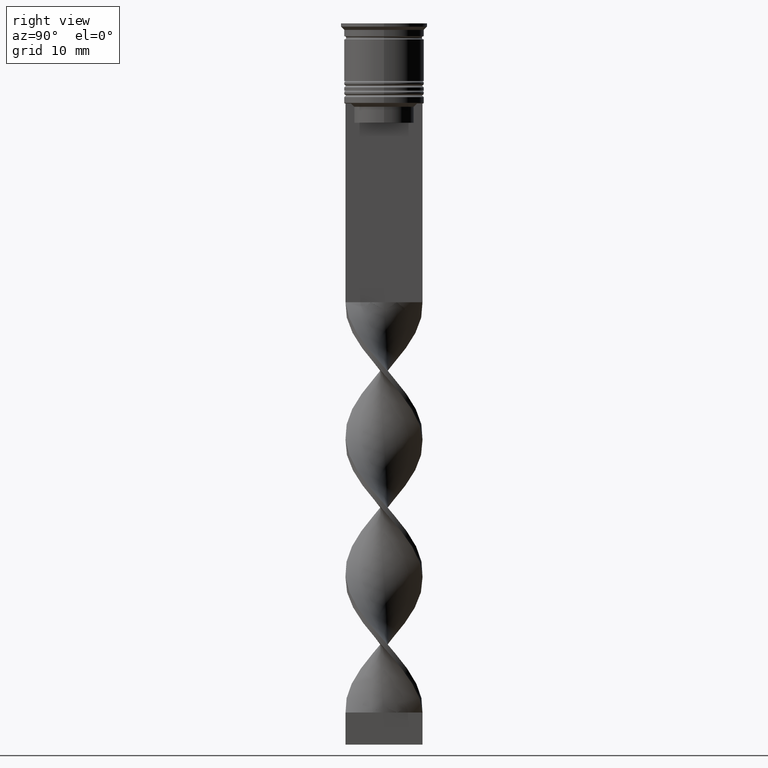
[diagram: clean part render]
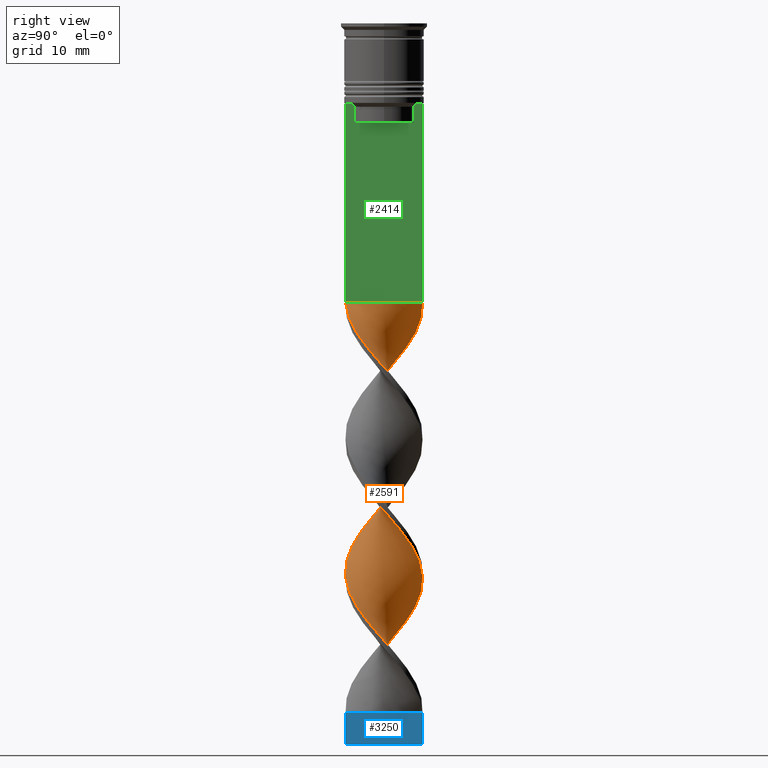
[diagram: same view with three faces highlighted in distinct colors, each labeled with its STEP entity id]
A machine part, right view with three faces highlighted in distinct colors.
Their STEP definitions:

[orange] entity #2591 — the highlighted face is a freeform B-spline surface patch.
#2 = CARTESIAN_POINT ( 'NONE',  ( 0.9504230770123223149, 5.945308736700090080, -105.8589743589743506 ) ) ;
#24 = CARTESIAN_POINT ( 'NONE',  ( 0.5000000000000002220, -5.999999999999999112, -43.50000000000000000 ) ) ;
#48 = CARTESIAN_POINT ( 'NONE',  ( 3.604480575359220840, 4.822625818147002086, -102.5769230769230660 ) ) ;
#60 = CARTESIAN_POINT ( 'NONE',  ( -3.604480575359219952, 4.822625818147005639, -91.08974358974359120 ) ) ;
#69 = CARTESIAN_POINT ( 'NONE',  ( 0.2285318993335655469, 6.060710991611129472, -106.6794871794871824 ) ) ;
#72 = ORIENTED_EDGE ( 'NONE', *, *, #1867, .F. ) ;
#79 = CARTESIAN_POINT ( 'NONE',  ( 1.228531899333567434, 5.939289008388870528, -85.34615384615383959 ) ) ;
#88 = CARTESIAN_POINT ( 'NONE',  ( -0.5000000000000004441, -2.000000000000000888, -107.5000000000000000 ) ) ;
#97 = CARTESIAN_POINT ( 'NONE',  ( 2.345611019436006028, -5.545097739941144077, -68.11538461538459899 ) ) ;
#105 = CARTESIAN_POINT ( 'NONE',  ( 1.672314254691078972, 5.829906481789051576, -105.0384615384615188 ) ) ;
#116 = CARTESIAN_POINT ( 'NONE',  ( 5.221935568727518628, 2.996896547440106140, -79.60256410256410220 ) ) ;
#137 = CARTESIAN_POINT ( 'NONE',  ( -2.345611019436006028, 5.545097739941144077, -89.44871794871794179 ) ) ;
#151 = CARTESIAN_POINT ( 'NONE',  ( 5.988975108237873712, -0.9574036273986641365, -52.52564102564103621 ) ) ;
#153 = CARTESIAN_POINT ( 'NONE',  ( 5.432795012591220996, -2.595137443597923532, -73.03846153846153300 ) ) ;
#168 = CARTESIAN_POINT ( 'NONE',  ( 5.747901747727227395, 1.935476698729089007, -55.80769230769230660 ) ) ;
#171 = CARTESIAN_POINT ( 'NONE',  ( -5.585824691029640299, -2.362838774426348376, -100.1153846153846132 ) ) ;
#189 = CARTESIAN_POINT ( 'NONE',  ( -2.614197889543180331, 5.472697136436197596, -67.29487179487178139 ) ) ;
#190 = CARTESIAN_POINT ( 'NONE',  ( -0.2285318993335630489, 6.060710991611131249, -86.98717948717948900 ) ) ;
#206 = CARTESIAN_POINT ( 'NONE',  ( -1.228531899333566546, -5.939289008388870528, -106.6794871794871682 ) ) ;
#208 = CARTESIAN_POINT ( 'NONE',  ( -5.117688277455214596, 3.254798188466754727, -93.55128205128204399 ) ) ;
#215 = CARTESIAN_POINT ( 'NONE',  ( 2.345611019436006472, 5.545097739941142301, -61.55128205128204399 ) ) ;
#224 = CARTESIAN_POINT ( 'NONE',  ( -4.653870821996361151, -3.819880413333761826, -79.60256410256410220 ) ) ;
#226 = CARTESIAN_POINT ( 'NONE',  ( -5.221935568727517740, -2.996896547440106584, -58.26923076923076650 ) ) ;
#235 = CARTESIAN_POINT ( 'NONE',  ( 5.747901747727227395, 1.935476698729089229, -55.80769230769230660 ) ) ;
#243 = CARTESIAN_POINT ( 'NONE',  ( -0.2285318993335662963, -6.060710991611128584, -85.34615384615383959 ) ) ;
#254 = CARTESIAN_POINT ( 'NONE',  ( 6.044068061194096231, 0.5036723384328413156, -54.16666666666666430 ) ) ;
#258 = CARTESIAN_POINT ( 'NONE',  ( 5.432795012591220107, 2.595137443597919980, -99.29487179487178139 ) ) ;
#304 = CARTESIAN_POINT ( 'NONE',  ( 6.016521584715984972, -0.2268656444829120489, -96.01282051282051100 ) ) ;
#323 = CARTESIAN_POINT ( 'NONE',  ( 5.988975108237873712, -0.9574036273986640255, -95.19230769230769340 ) ) ;
#329 = CARTESIAN_POINT ( 'NONE',  ( -4.190053366537507706, 4.384962638200773810, -91.91025641025643722 ) ) ;
#336 = CARTESIAN_POINT ( 'NONE',  ( -5.895984904460662257, -1.219574518580961220, -76.32051282051281760 ) ) ;
#351 = CARTESIAN_POINT ( 'NONE',  ( 3.847936200635251769, 4.688051999358553878, -82.06410256410255499 ) ) ;
#368 = CARTESIAN_POINT ( 'NONE',  ( -0.9504230770123205385, 5.945308736700091856, -45.14102564102563520 ) ) ;
#369 = CARTESIAN_POINT ( 'NONE',  ( -3.604480575359219952, 4.822625818147005639, -48.42307692307691269 ) ) ;
#375 = CARTESIAN_POINT ( 'NONE',  ( -5.787399899633755673, 1.660121200912507478, -73.03846153846153300 ) ) ;
#388 = CARTESIAN_POINT ( 'NONE',  ( -3.847936200635251325, -4.688051999358553878, -60.73076923076922640 ) ) ;
#405 = CARTESIAN_POINT ( 'NONE',  ( -1.672314254691077862, 5.829906481789053352, -88.62820512820513841 ) ) ;
#425 = CARTESIAN_POINT ( 'NONE',  ( 6.044068061194096231, 0.5036723384328413156, -54.16666666666665719 ) ) ;
#439 = CARTESIAN_POINT ( 'NONE',  ( -3.604480575359221728, -4.822625818147002086, -81.24358974358973740 ) ) ;
#441 = CARTESIAN_POINT ( 'NONE',  ( -5.988975108237876377, -0.9574036273986638035, -98.47435897435896379 ) ) ;
#455 = CARTESIAN_POINT ( 'NONE',  ( 1.228531899333563437, -5.939289008388868751, -44.32051282051282470 ) ) ;
#457 = CARTESIAN_POINT ( 'NONE',  ( -5.221935568727517740, -2.996896547440106584, -100.9358974358974308 ) ) ;
#476 = CARTESIAN_POINT ( 'NONE',  ( -1.228531899333561883, 5.939289008388868751, -65.65384615384614619 ) ) ;
#478 = CARTESIAN_POINT ( 'NONE',  ( 6.044068061194098007, -0.5036723384328427588, -75.50000000000000000 ) ) ;
#493 = CARTESIAN_POINT ( 'NONE',  ( -6.044068061194096231, -0.5036723384328405384, -75.49999999999998579 ) ) ;
#496 = CARTESIAN_POINT ( 'NONE',  ( -6.016521584715986748, -0.2268656444829102170, -97.65384615384614619 ) ) ;
#509 = CARTESIAN_POINT ( 'NONE',  ( 6.044068061194096231, 0.5036723384328413156, -96.83333333333332860 ) ) ;
#512 = CARTESIAN_POINT ( 'NONE',  ( 1.672314254691075641, -5.829906481789053352, -67.29487179487178139 ) ) ;
#525 = CARTESIAN_POINT ( 'NONE',  ( -1.921364894438370552, 5.705993072412533174, -66.47435897435896379 ) ) ;
#533 = CARTESIAN_POINT ( 'NONE',  ( 5.117688277455212820, 3.254798188466753395, -100.1153846153846274 ) ) ;
#545 = CARTESIAN_POINT ( 'NONE',  ( 3.604480575359220840, 4.822625818147002086, -59.91025641025640880 ) ) ;
#558 = CARTESIAN_POINT ( 'NONE',  ( 1.921364894438372550, -5.705993072412533174, -45.14102564102563520 ) ) ;
#576 = CARTESIAN_POINT ( 'NONE',  ( 4.653870821996360263, 3.819880413333762270, -58.26923076923076650 ) ) ;
#598 = CARTESIAN_POINT ( 'NONE',  ( 3.847936200635249993, -4.688051999358552990, -90.26923076923077360 ) ) ;
#607 = CARTESIAN_POINT ( 'NONE',  ( 0.2285318993335617443, -6.060710991611130360, -65.65384615384614619 ) ) ;
#612 = CARTESIAN_POINT ( 'NONE',  ( -5.585824691029636746, 2.362838774426351485, -72.21794871794871540 ) ) ;
#622 = CARTESIAN_POINT ( 'NONE',  ( -5.117688277455214596, 3.254798188466754727, -93.55128205128204399 ) ) ;
#624 = CARTESIAN_POINT ( 'NONE',  ( -0.9504230770123205385, 5.945308736700091856, -45.14102564102563520 ) ) ;
#629 = CARTESIAN_POINT ( 'NONE',  ( -5.117688277455215484, -3.254798188466750286, -78.78205128205127039 ) ) ;
#643 = CARTESIAN_POINT ( 'NONE',  ( 6.016521584715985860, 0.2268656444829068586, -76.32051282051281760 ) ) ;
#653 = CARTESIAN_POINT ( 'NONE',  ( -6.044068061194096231, -0.5036723384328406494, -75.50000000000000000 ) ) ;
#663 = CARTESIAN_POINT ( 'NONE',  ( -5.747901747727229171, 1.935476698729089895, -52.52564102564103621 ) ) ;
#665 = CARTESIAN_POINT ( 'NONE',  ( -0.2285318993335630489, 6.060710991611131249, -44.32051282051282470 ) ) ;
#682 = CARTESIAN_POINT ( 'NONE',  ( -0.2285318993335630489, 6.060710991611130360, -86.98717948717948900 ) ) ;
#701 = CARTESIAN_POINT ( 'NONE',  ( 5.585824691029639411, -2.362838774426348376, -50.88461538461538680 ) ) ;
#717 = CARTESIAN_POINT ( 'NONE',  ( -5.221935568727515076, 2.996896547440107028, -71.39743589743588359 ) ) ;
#719 = CARTESIAN_POINT ( 'NONE',  ( -6.044068061194098007, 0.5036723384328419817, -96.83333333333332860 ) ) ;
#733 = CARTESIAN_POINT ( 'NONE',  ( 4.352991323530321033, -4.159503159906209113, -48.42307692307691269 ) ) ;
#735 = CARTESIAN_POINT ( 'NONE',  ( 5.988975108237876377, 0.9574036273986615830, -77.14102564102563520 ) ) ;
#750 = CARTESIAN_POINT ( 'NONE',  ( -2.614197889543184328, -5.472697136436197596, -105.0384615384615330 ) ) ;
#752 = CARTESIAN_POINT ( 'NONE',  ( 3.018907784180933973, -5.260288998093237467, -68.93589743589743080 ) ) ;
#771 = CARTESIAN_POINT ( 'NONE',  ( -5.988975108237873712, 0.9574036273986636925, -73.85897435897436480 ) ) ;
#773 = CARTESIAN_POINT ( 'NONE',  ( 5.585824691029641187, 2.362838774426345267, -78.78205128205127039 ) ) ;
#788 = CARTESIAN_POINT ( 'NONE',  ( -2.345611019436006028, 5.545097739941144077, -89.44871794871794179 ) ) ;
#795 = CARTESIAN_POINT ( 'NONE',  ( 5.117688277455212820, 3.254798188466753395, -57.44871794871794890 ) ) ;
#803 = CARTESIAN_POINT ( 'NONE',  ( 2.345611019436006472, 5.545097739941142301, -104.2179487179487012 ) ) ;
#825 = CARTESIAN_POINT ( 'NONE',  ( 3.018907784180934861, 5.260288998093234802, -103.3974358974358694 ) ) ;
#849 = CARTESIAN_POINT ( 'NONE',  ( 5.988975108237873712, -0.9574036273986640255, -52.52564102564102910 ) ) ;
#868 = CARTESIAN_POINT ( 'NONE',  ( 5.585824691029638522, -2.362838774426348376, -93.55128205128204399 ) ) ;
#877 = VERTEX_POINT ( 'NONE', #1253 ) ;
#880 = VECTOR ( 'NONE', #2141, 1000.000000000000000 ) ;
#896 = CARTESIAN_POINT ( 'NONE',  ( 3.604480575359219952, -4.822625818147006527, -69.75641025641024839 ) ) ;
#902 = CARTESIAN_POINT ( 'NONE',  ( 5.895984904460661369, 1.219574518580964329, -97.65384615384614619 ) ) ;
#913 = CARTESIAN_POINT ( 'NONE',  ( 3.018907784180934417, -5.260288998093237467, -68.93589743589743080 ) ) ;
#919 = CARTESIAN_POINT ( 'NONE',  ( 3.231067045089215828, -5.080374567897374405, -89.44871794871794179 ) ) ;
#932 = CARTESIAN_POINT ( 'NONE',  ( 0.9504230770123185401, -5.945308736700091856, -66.47435897435896379 ) ) ;
#941 = CARTESIAN_POINT ( 'NONE',  ( -3.604480575359221728, -4.822625818147002086, -81.24358974358973740 ) ) ;
#951 = CARTESIAN_POINT ( 'NONE',  ( -3.018907784180934861, 5.260288998093236579, -47.60256410256408799 ) ) ;
#966 = CARTESIAN_POINT ( 'NONE',  ( 5.895984904460661369, 1.219574518580964329, -54.98717948717948190 ) ) ;
#982 = CARTESIAN_POINT ( 'NONE',  ( -6.044068061194098007, 0.5036723384328419817, -96.83333333333332860 ) ) ;
#983 = CARTESIAN_POINT ( 'NONE',  ( 2.614197889543185216, 5.472697136436197596, -83.70512820512820440 ) ) ;
#1000 = CARTESIAN_POINT ( 'NONE',  ( -6.016521584715986748, -0.2268656444829102170, -97.65384615384614619 ) ) ;
#1001 = CARTESIAN_POINT ( 'NONE',  ( 5.787399899633758338, 1.660121200912505923, -77.96153846153845279 ) ) ;
#1015 = CARTESIAN_POINT ( 'NONE',  ( -4.858046446425391629, 3.630954320453866568, -70.57692307692306599 ) ) ;
#1016 = CARTESIAN_POINT ( 'NONE',  ( -5.895984904460663145, 1.219574518580966771, -53.34615384615383959 ) ) ;
#1032 = CARTESIAN_POINT ( 'NONE',  ( -0.4999999999999994449, 5.999999999999999112, -64.83333333333332860 ) ) ;
#1034 = CARTESIAN_POINT ( 'NONE',  ( 1.921364894438378323, 5.705993072412532285, -84.52564102564103621 ) ) ;
#1044 = CARTESIAN_POINT ( 'NONE',  ( 0.9504230770123223149, 5.945308736700090080, -63.19230769230768630 ) ) ;
#1051 = CARTESIAN_POINT ( 'NONE',  ( -0.9504230770123205385, 5.945308736700091856, -87.80769230769230660 ) ) ;
#1078 = CARTESIAN_POINT ( 'NONE',  ( 1.672314254691079194, 5.829906481789051576, -105.0384615384615330 ) ) ;
#1134 = ORIENTED_EDGE ( 'NONE', *, *, #3367, .F. ) ;
#1160 = CARTESIAN_POINT ( 'NONE',  ( -4.190053366537507706, 4.384962638200773810, -49.24358974358973740 ) ) ;
#1166 = CARTESIAN_POINT ( 'NONE',  ( 4.190053366537507706, 4.384962638200772034, -101.7564102564102484 ) ) ;
#1175 = CARTESIAN_POINT ( 'NONE',  ( -5.432795012591220996, 2.595137443597922644, -94.37179487179486159 ) ) ;
#1191 = CARTESIAN_POINT ( 'NONE',  ( -3.604480575359219952, 4.822625818147005639, -48.42307692307691269 ) ) ;
#1198 = CARTESIAN_POINT ( 'NONE',  ( -6.016521584715984972, 0.2268656444829141028, -74.67948717948718240 ) ) ;
#1213 = CARTESIAN_POINT ( 'NONE',  ( 2.614197889543185216, 5.472697136436197596, -83.70512820512820440 ) ) ;
#1219 = ORIENTED_EDGE ( 'NONE', *, *, #2899, .F. ) ;
#1229 = CARTESIAN_POINT ( 'NONE',  ( 0.5000000000000002220, 6.000000000000000888, -86.16666666666667140 ) ) ;
#1242 = CARTESIAN_POINT ( 'NONE',  ( 5.787399899633755673, -1.660121200912507033, -51.70512820512820440 ) ) ;
#1244 = CARTESIAN_POINT ( 'NONE',  ( 5.895984904460663145, -1.219574518580968769, -74.67948717948718240 ) ) ;
#1253 = CARTESIAN_POINT ( 'NONE',  ( -0.4999999999999994449, 5.999999999999999112, -107.5000000000000000 ) ) ;
#1261 = CARTESIAN_POINT ( 'NONE',  ( 3.604480575359220840, 4.822625818147002086, -59.91025641025640880 ) ) ;
#1262 = CARTESIAN_POINT ( 'NONE',  ( -0.5000000000000009992, -6.000000000000000888, -64.83333333333332860 ) ) ;
#1279 = CARTESIAN_POINT ( 'NONE',  ( 3.231067045089215828, -5.080374567897374405, -46.78205128205127750 ) ) ;
#1282 = CARTESIAN_POINT ( 'NONE',  ( 4.653870821996361151, -3.819880413333764047, -71.39743589743588359 ) ) ;
#1296 = CARTESIAN_POINT ( 'NONE',  ( 5.432795012591220107, 2.595137443597919980, -56.62820512820513130 ) ) ;
#1298 = CARTESIAN_POINT ( 'NONE',  ( -5.747901747727229171, 1.935476698729089895, -52.52564102564102910 ) ) ;
#1314 = CARTESIAN_POINT ( 'NONE',  ( -0.5000000000000009992, -6.000000000000000888, -107.5000000000000000 ) ) ;
#1317 = CARTESIAN_POINT ( 'NONE',  ( 5.117688277455212820, -3.254798188466756947, -72.21794871794871540 ) ) ;
#1338 = CARTESIAN_POINT ( 'NONE',  ( 4.858046446425392517, -3.630954320453864348, -91.91025641025643722 ) ) ;
#1347 = CARTESIAN_POINT ( 'NONE',  ( -1.228531899333561883, 5.939289008388868751, -65.65384615384614619 ) ) ;
#1353 = CARTESIAN_POINT ( 'NONE',  ( 1.228531899333563437, -5.939289008388868751, -86.98717948717948900 ) ) ;
#1379 = CARTESIAN_POINT ( 'NONE',  ( 4.858046446425392517, -3.630954320453864348, -49.24358974358974450 ) ) ;
#1401 = CARTESIAN_POINT ( 'NONE',  ( 5.432795012591220107, 2.595137443597919980, -99.29487179487178139 ) ) ;
#1406 = CARTESIAN_POINT ( 'NONE',  ( 0.5000000000000002220, -5.999999999999999112, -86.16666666666667140 ) ) ;
#1417 = CARTESIAN_POINT ( 'NONE',  ( 6.044068061194096231, 0.5036723384328413156, -96.83333333333332860 ) ) ;
#1425 = CARTESIAN_POINT ( 'NONE',  ( 5.747901747727229171, -1.935476698729089451, -73.85897435897436480 ) ) ;
#1433 = CARTESIAN_POINT ( 'NONE',  ( -1.672314254691079416, -5.829906481789051576, -83.70512820512820440 ) ) ;
#1446 = CARTESIAN_POINT ( 'NONE',  ( -3.231067045089217604, -5.080374567897375293, -61.55128205128204399 ) ) ;
#1461 = CARTESIAN_POINT ( 'NONE',  ( -5.895984904460663145, 1.219574518580966771, -53.34615384615383959 ) ) ;
#1468 = CARTESIAN_POINT ( 'NONE',  ( 3.018907784180934417, 5.260288998093234802, -103.3974358974358836 ) ) ;
#1480 = CARTESIAN_POINT ( 'NONE',  ( 0.5000000000000002220, 6.000000000000000888, -43.50000000000000000 ) ) ;
#1499 = CARTESIAN_POINT ( 'NONE',  ( -5.585824691029640299, -2.362838774426348376, -57.44871794871794890 ) ) ;
#1503 =( BOUNDED_CURVE ( )  B_SPLINE_CURVE ( 2, ( #2868, #665, #624, #2263, #3328, #2002, #369, #1806, #2386, #3398, #2916, #1298, #1016, #2600, #2118, #2351, #3472, #2138, #226, #2880, #2658, #2085, #2676, #3420, #1840, #2950, #1262, #3208, #3191, #512, #2099, #752, #1552, #3156, #1282, #1317, #153, #3448, #1244, #478, #2637, #735, #1001, #773, #2332, #2368, #1823, #3432, #2407, #983, #1034, #2072, #1571, #190, #1051, #3142, #788, #1588, #3170, #1861, #1532, #208, #2933, #2894, #1876, #719, #496, #441, #2614, #171, #457, #2189, #1626, #3260, #1660, #2712, #1966, #1607, #1641 ),
 .UNSPECIFIED., .F., .T. ) 
 B_SPLINE_CURVE_WITH_KNOTS ( ( 3, 2, 2, 2, 2, 2, 2, 2, 2, 2, 2, 2, 2, 2, 2, 2, 2, 2, 2, 2, 2, 2, 2, 2, 2, 2, 2, 2, 2, 2, 2, 2, 2, 2, 2, 2, 2, 2, 2, 3 ),
 ( 0.000000000000000000, 0.01923076923076923184, 0.03846153846153846367, 0.05769230769230768857, 0.07692307692307692735, 0.09615384615384615918, 0.1153846153846153771, 0.1346153846153846090, 0.1538461538461538547, 0.1730769230769230449, 0.1923076923076923184, 0.2115384615384615363, 0.2307692307692307543, 0.2500000000000000000, 0.2692307692307692180, 0.2884615384615384359, 0.3076923076923077094, 0.3269230769230769273, 0.3461538461538460898, 0.3653846153846153633, 0.3846153846153846367, 0.4038461538461539102, 0.4230769230769230727, 0.4423076923076922906, 0.4615384615384615086, 0.4807692307692307820, 0.5000000000000000000, 0.5192307692307692735, 0.5384615384615384359, 0.5576923076923077094, 0.5769230769230768718, 0.5961538461538461453, 0.6153846153846154188, 0.6346153846153845812, 0.6538461538461538547, 0.6730769230769230171, 0.6923076923076921796, 0.7115384615384615641, 0.7307692307692307265, 0.7500000000000000000 ),
 .UNSPECIFIED. ) 
 CURVE ( )  GEOMETRIC_REPRESENTATION_ITEM ( )  RATIONAL_B_SPLINE_CURVE ( ( 1.000000000000000000, 0.9927088740980539727, 1.000000000000000000, 0.9927088740980539727, 1.000000000000000000, 0.9927088740980539727, 1.000000000000000000, 0.9927088740980539727, 1.000000000000000000, 0.9927088740980539727, 1.000000000000000000, 0.9927088740980539727, 1.000000000000000000, 0.9927088740980539727, 1.000000000000000000, 0.9927088740980539727, 1.000000000000000000, 0.9927088740980539727, 1.000000000000000000, 0.9927088740980539727, 1.000000000000000000, 0.9927088740980539727, 1.000000000000000000, 0.9927088740980539727, 1.000000000000000000, 0.9927088740980539727, 1.000000000000000000, 0.9927088740980539727, 1.000000000000000000, 0.9927088740980539727, 1.000000000000000000, 0.9927088740980539727, 1.000000000000000000, 0.9927088740980539727, 1.000000000000000000, 0.9927088740980539727, 1.000000000000000000, 0.9927088740980539727, 1.000000000000000000, 0.9927088740980539727, 1.000000000000000000, 0.9927088740980539727, 1.000000000000000000, 0.9927088740980539727, 1.000000000000000000, 0.9927088740980539727, 1.000000000000000000, 0.9927088740980539727, 1.000000000000000000, 0.9927088740980539727, 1.000000000000000000, 0.9927088740980539727, 1.000000000000000000, 0.9927088740980539727, 1.000000000000000000, 0.9927088740980539727, 1.000000000000000000, 0.9927088740980539727, 1.000000000000000000, 0.9927088740980539727, 1.000000000000000000, 0.9927088740980539727, 1.000000000000000000, 0.9927088740980539727, 1.000000000000000000, 0.9927088740980539727, 1.000000000000000000, 0.9927088740980539727, 1.000000000000000000, 0.9927088740980539727, 1.000000000000000000, 0.9927088740980539727, 1.000000000000000000, 0.9927088740980539727, 1.000000000000000000, 0.9927088740980539727, 1.000000000000000000, 0.9927088740980539727, 1.000000000000000000 ) ) 
 REPRESENTATION_ITEM ( '' )  );
#1510 = CARTESIAN_POINT ( 'NONE',  ( -0.4999999999999994449, 5.999999999999999112, -107.5000000000000000 ) ) ;
#1516 = CARTESIAN_POINT ( 'NONE',  ( -4.190053366537509483, -4.384962638200768481, -80.42307692307691980 ) ) ;
#1531 = CARTESIAN_POINT ( 'NONE',  ( 6.016521584715984972, -0.2268656444829120489, -53.34615384615383959 ) ) ;
#1532 = CARTESIAN_POINT ( 'NONE',  ( -4.653870821996361151, 3.819880413333764047, -92.73076923076922640 ) ) ;
#1535 = EDGE_CURVE ( 'NONE', #2505, #877, #3041, .T. ) ;
#1550 = CARTESIAN_POINT ( 'NONE',  ( -3.847936200635251325, -4.688051999358553878, -103.3974358974358694 ) ) ;
#1552 = CARTESIAN_POINT ( 'NONE',  ( 3.604480575359219952, -4.822625818147006527, -69.75641025641024839 ) ) ;
#1557 = CARTESIAN_POINT ( 'NONE',  ( 0.5000000000000002220, -6.000000000000000000, -43.50000000000000000 ) ) ;
#1569 = CARTESIAN_POINT ( 'NONE',  ( 0.2285318993335655469, 6.060710991611128584, -64.01282051282051100 ) ) ;
#1571 = CARTESIAN_POINT ( 'NONE',  ( 0.5000000000000002220, 6.000000000000000888, -86.16666666666667140 ) ) ;
#1586 = CARTESIAN_POINT ( 'NONE',  ( -5.747901747727229171, -1.935476698729086786, -77.14102564102563520 ) ) ;
#1588 = CARTESIAN_POINT ( 'NONE',  ( -3.018907784180934417, 5.260288998093236579, -90.26923076923077360 ) ) ;
#1591 = VERTEX_POINT ( 'NONE', #2026 ) ;
#1598 = CARTESIAN_POINT ( 'NONE',  ( 3.231067045089215828, -5.080374567897374405, -46.78205128205127750 ) ) ;
#1607 = CARTESIAN_POINT ( 'NONE',  ( -1.228531899333566324, -5.939289008388870528, -106.6794871794871824 ) ) ;
#1617 = ORIENTED_EDGE ( 'NONE', *, *, #1535, .T. ) ;
#1618 = CARTESIAN_POINT ( 'NONE',  ( 0.5000000000000002220, -5.999999999999999112, -43.50000000000000000 ) ) ;
#1624 = CARTESIAN_POINT ( 'NONE',  ( -0.4999999999999994449, 5.999999999999999112, -107.5000000000000000 ) ) ;
#1626 = CARTESIAN_POINT ( 'NONE',  ( -4.352991323530323697, -4.159503159906208225, -102.5769230769230660 ) ) ;
#1634 = CARTESIAN_POINT ( 'NONE',  ( 3.847936200635249993, -4.688051999358552990, -47.60256410256409509 ) ) ;
#1639 = CARTESIAN_POINT ( 'NONE',  ( 3.847936200635249993, -4.688051999358552990, -90.26923076923075939 ) ) ;
#1641 = CARTESIAN_POINT ( 'NONE',  ( -0.5000000000000009992, -6.000000000000000888, -107.5000000000000000 ) ) ;
#1651 = CARTESIAN_POINT ( 'NONE',  ( 2.614197889543182107, -5.472697136436196708, -45.96153846153845990 ) ) ;
#1658 = CARTESIAN_POINT ( 'NONE',  ( 0.2285318993335655469, 6.060710991611128584, -106.6794871794871682 ) ) ;
#1660 = CARTESIAN_POINT ( 'NONE',  ( -3.231067045089217604, -5.080374567897375293, -104.2179487179487012 ) ) ;
#1692 = CARTESIAN_POINT ( 'NONE',  ( 1.921364894438372550, -5.705993072412533174, -87.80769230769230660 ) ) ;
#1700 = CARTESIAN_POINT ( 'NONE',  ( 4.653870821996361151, -3.819880413333764047, -71.39743589743588359 ) ) ;
#1706 = CARTESIAN_POINT ( 'NONE',  ( -0.2285318993335662963, -6.060710991611129472, -85.34615384615385381 ) ) ;
#1713 = CARTESIAN_POINT ( 'NONE',  ( -5.988975108237874601, -0.9574036273986639145, -55.80769230769230660 ) ) ;
#1722 = CARTESIAN_POINT ( 'NONE',  ( 4.653870821996360263, 3.819880413333762270, -100.9358974358974308 ) ) ;
#1736 = CARTESIAN_POINT ( 'NONE',  ( 5.117688277455212820, -3.254798188466757392, -72.21794871794871540 ) ) ;
#1744 = CARTESIAN_POINT ( 'NONE',  ( 5.117688277455212820, 3.254798188466753395, -100.1153846153846132 ) ) ;
#1754 = CARTESIAN_POINT ( 'NONE',  ( -4.653870821996361151, 3.819880413333764047, -50.06410256410256210 ) ) ;
#1771 = CARTESIAN_POINT ( 'NONE',  ( 1.672314254691075641, -5.829906481789053352, -67.29487179487178139 ) ) ;
#1790 = CARTESIAN_POINT ( 'NONE',  ( -5.787399899633755673, 1.660121200912507478, -73.03846153846153300 ) ) ;
#1805 = CARTESIAN_POINT ( 'NONE',  ( 4.858046446425392517, -3.630954320453864348, -49.24358974358973740 ) ) ;
#1806 = CARTESIAN_POINT ( 'NONE',  ( -4.190053366537507706, 4.384962638200774698, -49.24358974358974450 ) ) ;
#1821 = CARTESIAN_POINT ( 'NONE',  ( -1.921364894438370552, 5.705993072412533174, -66.47435897435896379 ) ) ;
#1823 = CARTESIAN_POINT ( 'NONE',  ( 4.352991323530323697, 4.159503159906207337, -81.24358974358973740 ) ) ;
#1838 = CARTESIAN_POINT ( 'NONE',  ( 4.653870821996360263, 3.819880413333762270, -58.26923076923076650 ) ) ;
#1840 = CARTESIAN_POINT ( 'NONE',  ( -1.921364894438374993, -5.705993072412534062, -63.19230769230768630 ) ) ;
#1859 = CARTESIAN_POINT ( 'NONE',  ( 1.921364894438372550, -5.705993072412533174, -45.14102564102563520 ) ) ;
#1861 = CARTESIAN_POINT ( 'NONE',  ( -4.190053366537507706, 4.384962638200774698, -91.91025641025643722 ) ) ;
#1867 = EDGE_CURVE ( 'NONE', #1591, #877, #3411, .T. ) ;
#1876 = CARTESIAN_POINT ( 'NONE',  ( -5.895984904460663145, 1.219574518580966771, -96.01282051282051100 ) ) ;
#1883 = CARTESIAN_POINT ( 'NONE',  ( 4.190053366537507706, 4.384962638200772034, -59.08974358974358410 ) ) ;
#1911 = CARTESIAN_POINT ( 'NONE',  ( -0.9504230770123257566, -5.945308736700090080, -84.52564102564103621 ) ) ;
#1926 = CARTESIAN_POINT ( 'NONE',  ( -2.345611019436009581, -5.545097739941142301, -82.88461538461537259 ) ) ;
#1936 = CARTESIAN_POINT ( 'NONE',  ( 5.895984904460661369, 1.219574518580964329, -54.98717948717948190 ) ) ;
#1966 = CARTESIAN_POINT ( 'NONE',  ( -1.921364894438374993, -5.705993072412534062, -105.8589743589743506 ) ) ;
#1969 = CARTESIAN_POINT ( 'NONE',  ( -6.044068061194098007, 0.5036723384328419817, -54.16666666666665719 ) ) ;
#1974 = CARTESIAN_POINT ( 'NONE',  ( -0.4999999999999994449, 5.999999999999999112, -107.5000000000000000 ) ) ;
#1981 = CARTESIAN_POINT ( 'NONE',  ( 4.190053366537505930, -4.384962638200775586, -70.57692307692306599 ) ) ;
#1987 = CARTESIAN_POINT ( 'NONE',  ( -5.221935568727515076, 2.996896547440107028, -71.39743589743588359 ) ) ;
#1999 = CARTESIAN_POINT ( 'NONE',  ( 5.432795012591220996, -2.595137443597923532, -73.03846153846153300 ) ) ;
#2002 = CARTESIAN_POINT ( 'NONE',  ( -3.018907784180934417, 5.260288998093236579, -47.60256410256409509 ) ) ;
#2019 = CARTESIAN_POINT ( 'NONE',  ( -4.352991323530323697, -4.159503159906208225, -59.91025641025640880 ) ) ;
#2026 = CARTESIAN_POINT ( 'NONE',  ( -0.5000000000000009992, -6.000000000000000888, -107.5000000000000000 ) ) ;
#2036 = CARTESIAN_POINT ( 'NONE',  ( -0.9504230770123205385, 5.945308736700091856, -87.80769230769230660 ) ) ;
#2051 = CARTESIAN_POINT ( 'NONE',  ( -3.231067045089217604, -5.080374567897375293, -104.2179487179487012 ) ) ;
#2059 = CARTESIAN_POINT ( 'NONE',  ( -0.5000000000000000000, 1.999999999999999112, -107.5000000000000000 ) ) ;
#2070 = CARTESIAN_POINT ( 'NONE',  ( 5.117688277455212820, 3.254798188466753395, -57.44871794871794890 ) ) ;
#2072 = CARTESIAN_POINT ( 'NONE',  ( 1.228531899333567212, 5.939289008388870528, -85.34615384615385381 ) ) ;
#2084 = CARTESIAN_POINT ( 'NONE',  ( -5.787399899633758338, -1.660121200912505479, -99.29487179487178139 ) ) ;
#2085 = CARTESIAN_POINT ( 'NONE',  ( -3.847936200635251769, -4.688051999358553878, -60.73076923076922640 ) ) ;
#2097 = CARTESIAN_POINT ( 'NONE',  ( 5.221935568727515076, -2.996896547440107028, -50.06410256410256210 ) ) ;
#2099 = CARTESIAN_POINT ( 'NONE',  ( 2.345611019436006028, -5.545097739941144077, -68.11538461538459899 ) ) ;
#2116 = CARTESIAN_POINT ( 'NONE',  ( 0.9504230770123223149, 5.945308736700090080, -63.19230769230768630 ) ) ;
#2118 = CARTESIAN_POINT ( 'NONE',  ( -6.016521584715986748, -0.2268656444829102170, -54.98717948717948190 ) ) ;
#2129 = CARTESIAN_POINT ( 'NONE',  ( -0.4999999999999994449, 5.999999999999999112, -64.83333333333332860 ) ) ;
#2136 = CARTESIAN_POINT ( 'NONE',  ( 1.921364894438372550, -5.705993072412533174, -87.80769230769230660 ) ) ;
#2138 = CARTESIAN_POINT ( 'NONE',  ( -5.585824691029640299, -2.362838774426348376, -57.44871794871794890 ) ) ;
#2141 = DIRECTION ( 'NONE',  ( 0.000000000000000000, 1.000000000000000000, 0.000000000000000000 ) ) ;
#2145 = CARTESIAN_POINT ( 'NONE',  ( 4.352991323530321033, -4.159503159906209113, -48.42307692307691269 ) ) ;
#2161 = CARTESIAN_POINT ( 'NONE',  ( 0.2285318993335655469, 6.060710991611129472, -64.01282051282051100 ) ) ;
#2169 = CARTESIAN_POINT ( 'NONE',  ( 5.747901747727227395, 1.935476698729089007, -98.47435897435896379 ) ) ;
#2189 = CARTESIAN_POINT ( 'NONE',  ( -4.858046446425395182, -3.630954320453863460, -101.7564102564102484 ) ) ;
#2215 = EDGE_LOOP ( 'NONE', ( #1219, #1617, #72, #1134 ) ) ;
#2224 = FACE_OUTER_BOUND ( 'NONE', #2215, .T. ) ;
#2233 = CARTESIAN_POINT ( 'NONE',  ( -4.190053366537509483, -4.384962638200769369, -80.42307692307691980 ) ) ;
#2244 = CARTESIAN_POINT ( 'NONE',  ( -4.858046446425395182, -3.630954320453863460, -59.08974358974359120 ) ) ;
#2250 = CARTESIAN_POINT ( 'NONE',  ( 1.228531899333563215, -5.939289008388868751, -86.98717948717948900 ) ) ;
#2257 = VERTEX_POINT ( 'NONE', #3158 ) ;
#2260 = CARTESIAN_POINT ( 'NONE',  ( 5.988975108237874601, 0.9574036273986615830, -77.14102564102563520 ) ) ;
#2263 = CARTESIAN_POINT ( 'NONE',  ( -1.672314254691077640, 5.829906481789053352, -45.96153846153845990 ) ) ;
#2278 = CARTESIAN_POINT ( 'NONE',  ( -5.432795012591220996, 2.595137443597922644, -51.70512820512820440 ) ) ;
#2301 = CARTESIAN_POINT ( 'NONE',  ( 1.921364894438378323, 5.705993072412532285, -84.52564102564103621 ) ) ;
#2308 = CARTESIAN_POINT ( 'NONE',  ( -0.5000000000000009992, -6.000000000000000888, -107.5000000000000000 ) ) ;
#2315 = CARTESIAN_POINT ( 'NONE',  ( -3.018907784180934861, 5.260288998093236579, -90.26923076923075939 ) ) ;
#2331 = CARTESIAN_POINT ( 'NONE',  ( -5.895984904460663145, 1.219574518580966771, -96.01282051282051100 ) ) ;
#2332 = CARTESIAN_POINT ( 'NONE',  ( 5.221935568727518628, 2.996896547440106140, -79.60256410256410220 ) ) ;
#2349 = CARTESIAN_POINT ( 'NONE',  ( 3.018907784180934861, 5.260288998093234802, -60.73076923076922640 ) ) ;
#2351 = CARTESIAN_POINT ( 'NONE',  ( -5.988975108237876377, -0.9574036273986638035, -55.80769230769230660 ) ) ;
#2366 = CARTESIAN_POINT ( 'NONE',  ( -4.352991323530323697, -4.159503159906208225, -102.5769230769230660 ) ) ;
#2368 = CARTESIAN_POINT ( 'NONE',  ( 4.858046446425397846, 3.630954320453860795, -80.42307692307691980 ) ) ;
#2384 = CARTESIAN_POINT ( 'NONE',  ( -3.847936200635249104, 4.688051999358553878, -68.93589743589743080 ) ) ;
#2386 = CARTESIAN_POINT ( 'NONE',  ( -4.653870821996361151, 3.819880413333764047, -50.06410256410256210 ) ) ;
#2405 = CARTESIAN_POINT ( 'NONE',  ( 2.614197889543182107, -5.472697136436196708, -45.96153846153845279 ) ) ;
#2407 = CARTESIAN_POINT ( 'NONE',  ( 3.231067045089220713, 5.080374567897373517, -82.88461538461537259 ) ) ;
#2417 = CARTESIAN_POINT ( 'NONE',  ( 3.018907784180934417, 5.260288998093234802, -60.73076923076922640 ) ) ;
#2423 = CARTESIAN_POINT ( 'NONE',  ( 5.221935568727515076, -2.996896547440107028, -92.73076923076922640 ) ) ;
#2431 =( BOUNDED_SURFACE ( )  B_SPLINE_SURFACE ( 1, 2, ( 
 ( #1480, #2812, #368, #3093, #3363, #951, #1191, #1160, #1754, #2777, #2278, #663, #1461, #1969, #2564, #1713, #2846, #1499, #3108, #2244, #2019, #388, #1446, #2550, #3313, #3380, #3327, #607, #932, #1771, #97, #913, #896, #1981, #1700, #1736, #1999, #1425, #2514, #2584, #643, #2260, #2534, #2793, #116, #3037, #2828, #351, #3074, #1213, #2301, #79, #1229, #682, #2036, #405, #137, #2315, #60, #329, #3055, #622, #1175, #3396, #2331, #982, #1000, #3417, #2084, #3124, #2915, #3155, #2366, #1550, #2051, #750, #2612, #206, #1314 ),
 ( #2892, #455, #1859, #2405, #1279, #2635, #733, #1805, #2097, #701, #1242, #151, #1531, #425, #966, #168, #1296, #2070, #1838, #3168, #1261, #2349, #3430, #3141, #2116, #1569, #1032, #476, #1821, #189, #2655, #2384, #3447, #1015, #717, #3189, #1790, #771, #2931, #493, #2866, #1586, #2879, #2674, #224, #1516, #439, #2598, #1926, #2968, #1911, #243, #1406, #1353, #2136, #2453, #3275, #1639, #2440, #1338, #2423, #3206, #3240, #3500, #2948, #509, #3015, #2169, #258, #533, #3221, #2998, #3470, #825, #803, #1078, #2, #1658, #1624 ) ),
 .UNSPECIFIED., .F., .F., .F. ) 
 B_SPLINE_SURFACE_WITH_KNOTS ( ( 2, 2 ),
 ( 3, 2, 2, 2, 2, 2, 2, 2, 2, 2, 2, 2, 2, 2, 2, 2, 2, 2, 2, 2, 2, 2, 2, 2, 2, 2, 2, 2, 2, 2, 2, 2, 2, 2, 2, 2, 2, 2, 2, 3 ),
 ( 0.000000000000000000, 1.000000000000000000 ),
 ( 0.000000000000000000, 0.01923076923076923184, 0.03846153846153846367, 0.05769230769230769551, 0.07692307692307692735, 0.09615384615384615918, 0.1153846153846153910, 0.1346153846153846090, 0.1538461538461538547, 0.1730769230769230727, 0.1923076923076923184, 0.2115384615384615363, 0.2307692307692307820, 0.2500000000000000000, 0.2692307692307692180, 0.2884615384615384359, 0.3076923076923077094, 0.3269230769230769273, 0.3461538461538461453, 0.3653846153846153633, 0.3846153846153846367, 0.4038461538461538547, 0.4230769230769230727, 0.4423076923076922906, 0.4615384615384615641, 0.4807692307692307820, 0.5000000000000000000, 0.5192307692307692735, 0.5384615384615384359, 0.5576923076923077094, 0.5769230769230768718, 0.5961538461538461453, 0.6153846153846154188, 0.6346153846153845812, 0.6538461538461538547, 0.6730769230769231282, 0.6923076923076922906, 0.7115384615384615641, 0.7307692307692307265, 0.7500000000000000000 ),
 .UNSPECIFIED. ) 
 GEOMETRIC_REPRESENTATION_ITEM ( )  RATIONAL_B_SPLINE_SURFACE ( (
 ( 1.000000000000000000, 0.9927088740980539727, 1.000000000000000000, 0.9927088740980539727, 1.000000000000000000, 0.9927088740980539727, 1.000000000000000000, 0.9927088740980539727, 1.000000000000000000, 0.9927088740980539727, 1.000000000000000000, 0.9927088740980539727, 1.000000000000000000, 0.9927088740980539727, 1.000000000000000000, 0.9927088740980539727, 1.000000000000000000, 0.9927088740980539727, 1.000000000000000000, 0.9927088740980539727, 1.000000000000000000, 0.9927088740980539727, 1.000000000000000000, 0.9927088740980539727, 1.000000000000000000, 0.9927088740980539727, 1.000000000000000000, 0.9927088740980539727, 1.000000000000000000, 0.9927088740980539727, 1.000000000000000000, 0.9927088740980539727, 1.000000000000000000, 0.9927088740980539727, 1.000000000000000000, 0.9927088740980539727, 1.000000000000000000, 0.9927088740980539727, 1.000000000000000000, 0.9927088740980539727, 1.000000000000000000, 0.9927088740980539727, 1.000000000000000000, 0.9927088740980539727, 1.000000000000000000, 0.9927088740980539727, 1.000000000000000000, 0.9927088740980539727, 1.000000000000000000, 0.9927088740980539727, 1.000000000000000000, 0.9927088740980539727, 1.000000000000000000, 0.9927088740980539727, 1.000000000000000000, 0.9927088740980539727, 1.000000000000000000, 0.9927088740980539727, 1.000000000000000000, 0.9927088740980539727, 1.000000000000000000, 0.9927088740980539727, 1.000000000000000000, 0.9927088740980539727, 1.000000000000000000, 0.9927088740980539727, 1.000000000000000000, 0.9927088740980539727, 1.000000000000000000, 0.9927088740980539727, 1.000000000000000000, 0.9927088740980539727, 1.000000000000000000, 0.9927088740980539727, 1.000000000000000000, 0.9927088740980539727, 1.000000000000000000, 0.9927088740980539727, 1.000000000000000000),
 ( 1.000000000000000000, 0.9927088740980539727, 1.000000000000000000, 0.9927088740980539727, 1.000000000000000000, 0.9927088740980539727, 1.000000000000000000, 0.9927088740980539727, 1.000000000000000000, 0.9927088740980539727, 1.000000000000000000, 0.9927088740980539727, 1.000000000000000000, 0.9927088740980539727, 1.000000000000000000, 0.9927088740980539727, 1.000000000000000000, 0.9927088740980539727, 1.000000000000000000, 0.9927088740980539727, 1.000000000000000000, 0.9927088740980539727, 1.000000000000000000, 0.9927088740980539727, 1.000000000000000000, 0.9927088740980539727, 1.000000000000000000, 0.9927088740980539727, 1.000000000000000000, 0.9927088740980539727, 1.000000000000000000, 0.9927088740980539727, 1.000000000000000000, 0.9927088740980539727, 1.000000000000000000, 0.9927088740980539727, 1.000000000000000000, 0.9927088740980539727, 1.000000000000000000, 0.9927088740980539727, 1.000000000000000000, 0.9927088740980539727, 1.000000000000000000, 0.9927088740980539727, 1.000000000000000000, 0.9927088740980539727, 1.000000000000000000, 0.9927088740980539727, 1.000000000000000000, 0.9927088740980539727, 1.000000000000000000, 0.9927088740980539727, 1.000000000000000000, 0.9927088740980539727, 1.000000000000000000, 0.9927088740980539727, 1.000000000000000000, 0.9927088740980539727, 1.000000000000000000, 0.9927088740980539727, 1.000000000000000000, 0.9927088740980539727, 1.000000000000000000, 0.9927088740980539727, 1.000000000000000000, 0.9927088740980539727, 1.000000000000000000, 0.9927088740980539727, 1.000000000000000000, 0.9927088740980539727, 1.000000000000000000, 0.9927088740980539727, 1.000000000000000000, 0.9927088740980539727, 1.000000000000000000, 0.9927088740980539727, 1.000000000000000000, 0.9927088740980539727, 1.000000000000000000) ) ) 
 REPRESENTATION_ITEM ( '' )  SURFACE ( )  );
#2433 = CARTESIAN_POINT ( 'NONE',  ( -2.614197889543180331, 5.472697136436197596, -67.29487179487178139 ) ) ;
#2440 = CARTESIAN_POINT ( 'NONE',  ( 4.352991323530321033, -4.159503159906209113, -91.08974358974359120 ) ) ;
#2453 = CARTESIAN_POINT ( 'NONE',  ( 2.614197889543182107, -5.472697136436196708, -88.62820512820513841 ) ) ;
#2467 = CARTESIAN_POINT ( 'NONE',  ( 5.585824691029638522, -2.362838774426348376, -50.88461538461537970 ) ) ;
#2484 = CARTESIAN_POINT ( 'NONE',  ( 0.9504230770123223149, 5.945308736700090080, -105.8589743589743506 ) ) ;
#2502 = CARTESIAN_POINT ( 'NONE',  ( -5.747901747727229171, -1.935476698729087008, -77.14102564102563520 ) ) ;
#2505 = VERTEX_POINT ( 'NONE', #24 ) ;
#2514 = CARTESIAN_POINT ( 'NONE',  ( 5.895984904460663145, -1.219574518580968769, -74.67948717948718240 ) ) ;
#2523 = CARTESIAN_POINT ( 'NONE',  ( 5.747901747727227395, 1.935476698729089229, -98.47435897435896379 ) ) ;
#2534 = CARTESIAN_POINT ( 'NONE',  ( 5.787399899633758338, 1.660121200912505923, -77.96153846153845279 ) ) ;
#2550 = CARTESIAN_POINT ( 'NONE',  ( -2.614197889543184328, -5.472697136436197596, -62.37179487179486870 ) ) ;
#2557 = CARTESIAN_POINT ( 'NONE',  ( 5.787399899633755673, -1.660121200912507033, -94.37179487179486159 ) ) ;
#2564 = CARTESIAN_POINT ( 'NONE',  ( -6.016521584715986748, -0.2268656444829102170, -54.98717948717948190 ) ) ;
#2584 = CARTESIAN_POINT ( 'NONE',  ( 6.044068061194098007, -0.5036723384328427588, -75.49999999999998579 ) ) ;
#2591 = ADVANCED_FACE ( 'NONE', ( #2224 ), #2431, .T. ) ;
#2598 = CARTESIAN_POINT ( 'NONE',  ( -3.018907784180935305, -5.260288998093234802, -82.06410256410255499 ) ) ;
#2600 = CARTESIAN_POINT ( 'NONE',  ( -6.044068061194098007, 0.5036723384328419817, -54.16666666666666430 ) ) ;
#2612 = CARTESIAN_POINT ( 'NONE',  ( -1.921364894438374993, -5.705993072412534062, -105.8589743589743506 ) ) ;
#2614 = CARTESIAN_POINT ( 'NONE',  ( -5.787399899633758338, -1.660121200912505479, -99.29487179487178139 ) ) ;
#2635 = CARTESIAN_POINT ( 'NONE',  ( 3.847936200635249993, -4.688051999358552990, -47.60256410256408799 ) ) ;
#2637 = CARTESIAN_POINT ( 'NONE',  ( 6.016521584715985860, 0.2268656444829068586, -76.32051282051281760 ) ) ;
#2655 = CARTESIAN_POINT ( 'NONE',  ( -3.231067045089215384, 5.080374567897374405, -68.11538461538459899 ) ) ;
#2658 = CARTESIAN_POINT ( 'NONE',  ( -4.352991323530323697, -4.159503159906208225, -59.91025641025640880 ) ) ;
#2666 = CARTESIAN_POINT ( 'NONE',  ( 5.787399899633755673, -1.660121200912507033, -51.70512820512820440 ) ) ;
#2674 = CARTESIAN_POINT ( 'NONE',  ( -5.117688277455215484, -3.254798188466750730, -78.78205128205127039 ) ) ;
#2676 = CARTESIAN_POINT ( 'NONE',  ( -3.231067045089217604, -5.080374567897375293, -61.55128205128204399 ) ) ;
#2684 = CARTESIAN_POINT ( 'NONE',  ( -4.352991323530320145, 4.159503159906209113, -69.75641025641024839 ) ) ;
#2704 = CARTESIAN_POINT ( 'NONE',  ( 6.016521584715984972, -0.2268656444829120489, -53.34615384615383959 ) ) ;
#2712 = CARTESIAN_POINT ( 'NONE',  ( -2.614197889543184328, -5.472697136436197596, -105.0384615384615188 ) ) ;
#2751 = CARTESIAN_POINT ( 'NONE',  ( -5.988975108237873712, 0.9574036273986635814, -73.85897435897436480 ) ) ;
#2768 = CARTESIAN_POINT ( 'NONE',  ( 4.858046446425392517, -3.630954320453864348, -91.91025641025643722 ) ) ;
#2777 = CARTESIAN_POINT ( 'NONE',  ( -5.117688277455214596, 3.254798188466754727, -50.88461538461538680 ) ) ;
#2783 = CARTESIAN_POINT ( 'NONE',  ( 5.221935568727515076, -2.996896547440107028, -92.73076923076922640 ) ) ;
#2793 = CARTESIAN_POINT ( 'NONE',  ( 5.585824691029641187, 2.362838774426345712, -78.78205128205127039 ) ) ;
#2801 = CARTESIAN_POINT ( 'NONE',  ( 2.345611019436006472, 5.545097739941142301, -104.2179487179487012 ) ) ;
#2812 = CARTESIAN_POINT ( 'NONE',  ( -0.2285318993335630489, 6.060710991611130360, -44.32051282051282470 ) ) ;
#2818 = CARTESIAN_POINT ( 'NONE',  ( -3.018907784180934861, -5.260288998093234802, -82.06410256410255499 ) ) ;
#2828 = CARTESIAN_POINT ( 'NONE',  ( 4.352991323530323697, 4.159503159906207337, -81.24358974358973740 ) ) ;
#2846 = CARTESIAN_POINT ( 'NONE',  ( -5.787399899633758338, -1.660121200912505479, -56.62820512820513130 ) ) ;
#2866 = CARTESIAN_POINT ( 'NONE',  ( -5.895984904460662257, -1.219574518580961220, -76.32051282051281760 ) ) ;
#2868 = CARTESIAN_POINT ( 'NONE',  ( 0.5000000000000002220, 6.000000000000000888, -43.50000000000000000 ) ) ;
#2879 = CARTESIAN_POINT ( 'NONE',  ( -5.432795012591220107, -2.595137443597920868, -77.96153846153845279 ) ) ;
#2880 = CARTESIAN_POINT ( 'NONE',  ( -4.858046446425395182, -3.630954320453863460, -59.08974358974358410 ) ) ;
#2892 = CARTESIAN_POINT ( 'NONE',  ( 0.5000000000000002220, -5.999999999999999112, -43.50000000000000000 ) ) ;
#2894 = CARTESIAN_POINT ( 'NONE',  ( -5.747901747727229171, 1.935476698729089895, -95.19230769230769340 ) ) ;
#2899 = EDGE_CURVE ( 'NONE', #2505, #2257, #3144, .T. ) ;
#2915 = CARTESIAN_POINT ( 'NONE',  ( -5.221935568727517740, -2.996896547440106584, -100.9358974358974308 ) ) ;
#2916 = CARTESIAN_POINT ( 'NONE',  ( -5.432795012591220996, 2.595137443597922644, -51.70512820512820440 ) ) ;
#2931 = CARTESIAN_POINT ( 'NONE',  ( -6.016521584715984972, 0.2268656444829141028, -74.67948717948718240 ) ) ;
#2933 = CARTESIAN_POINT ( 'NONE',  ( -5.432795012591220996, 2.595137443597922644, -94.37179487179486159 ) ) ;
#2941 = CARTESIAN_POINT ( 'NONE',  ( -3.847936200635249104, 4.688051999358553878, -68.93589743589743080 ) ) ;
#2948 = CARTESIAN_POINT ( 'NONE',  ( 6.016521584715984972, -0.2268656444829120489, -96.01282051282051100 ) ) ;
#2950 = CARTESIAN_POINT ( 'NONE',  ( -1.228531899333566324, -5.939289008388870528, -64.01282051282051100 ) ) ;
#2959 = CARTESIAN_POINT ( 'NONE',  ( 5.221935568727515076, -2.996896547440107028, -50.06410256410256210 ) ) ;
#2968 = CARTESIAN_POINT ( 'NONE',  ( -1.672314254691079638, -5.829906481789051576, -83.70512820512820440 ) ) ;
#2993 = CARTESIAN_POINT ( 'NONE',  ( 1.228531899333563215, -5.939289008388868751, -44.32051282051282470 ) ) ;
#2998 = CARTESIAN_POINT ( 'NONE',  ( 4.190053366537507706, 4.384962638200771146, -101.7564102564102484 ) ) ;
#3009 = CARTESIAN_POINT ( 'NONE',  ( 5.432795012591220107, 2.595137443597919980, -56.62820512820513130 ) ) ;
#3015 = CARTESIAN_POINT ( 'NONE',  ( 5.895984904460661369, 1.219574518580964329, -97.65384615384614619 ) ) ;
#3029 = CARTESIAN_POINT ( 'NONE',  ( 4.352991323530321033, -4.159503159906209113, -91.08974358974359120 ) ) ;
#3037 = CARTESIAN_POINT ( 'NONE',  ( 4.858046446425397846, 3.630954320453860795, -80.42307692307691980 ) ) ;
#3041 =( BOUNDED_CURVE ( )  B_SPLINE_CURVE ( 2, ( #1618, #2993, #558, #1651, #1598, #1634, #2145, #1379, #2959, #2467, #2666, #849, #2704, #254, #1936, #235, #3009, #795, #576, #1883, #545, #2417, #215, #3460, #1044, #2161, #2129, #1347, #525, #2433, #3199, #2941, #2684, #3232, #1987, #612, #375, #2751, #1198, #653, #336, #2502, #3045, #629, #3332, #2233, #941, #2818, #3082, #1433, #3062, #1706, #3285, #2250, #1692, #3319, #919, #598, #3029, #2768, #2783, #868, #2557, #323, #304, #1417, #902, #2523, #1401, #1744, #1722, #1166, #48, #1468, #2801, #105, #2484, #69, #1974 ),
 .UNSPECIFIED., .F., .T. ) 
 B_SPLINE_CURVE_WITH_KNOTS ( ( 3, 2, 2, 2, 2, 2, 2, 2, 2, 2, 2, 2, 2, 2, 2, 2, 2, 2, 2, 2, 2, 2, 2, 2, 2, 2, 2, 2, 2, 2, 2, 2, 2, 2, 2, 2, 2, 2, 2, 3 ),
 ( 0.000000000000000000, 0.01923076923076923184, 0.03846153846153846367, 0.05769230769230768857, 0.07692307692307692735, 0.09615384615384615918, 0.1153846153846153771, 0.1346153846153846090, 0.1538461538461538547, 0.1730769230769230449, 0.1923076923076923184, 0.2115384615384615363, 0.2307692307692307543, 0.2500000000000000000, 0.2692307692307692180, 0.2884615384615384359, 0.3076923076923077094, 0.3269230769230769273, 0.3461538461538460898, 0.3653846153846153633, 0.3846153846153846367, 0.4038461538461539102, 0.4230769230769230727, 0.4423076923076922906, 0.4615384615384615086, 0.4807692307692307820, 0.5000000000000000000, 0.5192307692307692735, 0.5384615384615384359, 0.5576923076923077094, 0.5769230769230768718, 0.5961538461538461453, 0.6153846153846154188, 0.6346153846153845812, 0.6538461538461538547, 0.6730769230769230171, 0.6923076923076921796, 0.7115384615384615641, 0.7307692307692307265, 0.7500000000000000000 ),
 .UNSPECIFIED. ) 
 CURVE ( )  GEOMETRIC_REPRESENTATION_ITEM ( )  RATIONAL_B_SPLINE_CURVE ( ( 1.000000000000000000, 0.9927088740980539727, 1.000000000000000000, 0.9927088740980539727, 1.000000000000000000, 0.9927088740980539727, 1.000000000000000000, 0.9927088740980539727, 1.000000000000000000, 0.9927088740980539727, 1.000000000000000000, 0.9927088740980539727, 1.000000000000000000, 0.9927088740980539727, 1.000000000000000000, 0.9927088740980539727, 1.000000000000000000, 0.9927088740980539727, 1.000000000000000000, 0.9927088740980539727, 1.000000000000000000, 0.9927088740980539727, 1.000000000000000000, 0.9927088740980539727, 1.000000000000000000, 0.9927088740980539727, 1.000000000000000000, 0.9927088740980539727, 1.000000000000000000, 0.9927088740980539727, 1.000000000000000000, 0.9927088740980539727, 1.000000000000000000, 0.9927088740980539727, 1.000000000000000000, 0.9927088740980539727, 1.000000000000000000, 0.9927088740980539727, 1.000000000000000000, 0.9927088740980539727, 1.000000000000000000, 0.9927088740980539727, 1.000000000000000000, 0.9927088740980539727, 1.000000000000000000, 0.9927088740980539727, 1.000000000000000000, 0.9927088740980539727, 1.000000000000000000, 0.9927088740980539727, 1.000000000000000000, 0.9927088740980539727, 1.000000000000000000, 0.9927088740980539727, 1.000000000000000000, 0.9927088740980539727, 1.000000000000000000, 0.9927088740980539727, 1.000000000000000000, 0.9927088740980539727, 1.000000000000000000, 0.9927088740980539727, 1.000000000000000000, 0.9927088740980539727, 1.000000000000000000, 0.9927088740980539727, 1.000000000000000000, 0.9927088740980539727, 1.000000000000000000, 0.9927088740980539727, 1.000000000000000000, 0.9927088740980539727, 1.000000000000000000, 0.9927088740980539727, 1.000000000000000000, 0.9927088740980539727, 1.000000000000000000, 0.9927088740980539727, 1.000000000000000000 ) ) 
 REPRESENTATION_ITEM ( '' )  );
#3045 = CARTESIAN_POINT ( 'NONE',  ( -5.432795012591220107, -2.595137443597920868, -77.96153846153845279 ) ) ;
#3055 = CARTESIAN_POINT ( 'NONE',  ( -4.653870821996361151, 3.819880413333764047, -92.73076923076922640 ) ) ;
#3062 = CARTESIAN_POINT ( 'NONE',  ( -0.9504230770123257566, -5.945308736700090080, -84.52564102564103621 ) ) ;
#3074 = CARTESIAN_POINT ( 'NONE',  ( 3.231067045089220713, 5.080374567897373517, -82.88461538461537259 ) ) ;
#3082 = CARTESIAN_POINT ( 'NONE',  ( -2.345611019436009581, -5.545097739941142301, -82.88461538461537259 ) ) ;
#3093 = CARTESIAN_POINT ( 'NONE',  ( -1.672314254691077862, 5.829906481789053352, -45.96153846153845279 ) ) ;
#3108 = CARTESIAN_POINT ( 'NONE',  ( -5.221935568727517740, -2.996896547440106584, -58.26923076923076650 ) ) ;
#3124 = CARTESIAN_POINT ( 'NONE',  ( -5.585824691029640299, -2.362838774426348376, -100.1153846153846274 ) ) ;
#3141 = CARTESIAN_POINT ( 'NONE',  ( 1.672314254691079194, 5.829906481789051576, -62.37179487179486870 ) ) ;
#3142 = CARTESIAN_POINT ( 'NONE',  ( -1.672314254691077640, 5.829906481789053352, -88.62820512820512420 ) ) ;
#3144 = LINE ( 'NONE', #1557, #880 ) ;
#3155 = CARTESIAN_POINT ( 'NONE',  ( -4.858046446425395182, -3.630954320453863460, -101.7564102564102484 ) ) ;
#3156 = CARTESIAN_POINT ( 'NONE',  ( 4.190053366537505930, -4.384962638200776475, -70.57692307692306599 ) ) ;
#3158 = CARTESIAN_POINT ( 'NONE',  ( 0.5000000000000002220, 6.000000000000000888, -43.50000000000000000 ) ) ;
#3168 = CARTESIAN_POINT ( 'NONE',  ( 4.190053366537507706, 4.384962638200771146, -59.08974358974359120 ) ) ;
#3170 = CARTESIAN_POINT ( 'NONE',  ( -3.604480575359219952, 4.822625818147005639, -91.08974358974359120 ) ) ;
#3189 = CARTESIAN_POINT ( 'NONE',  ( -5.585824691029637634, 2.362838774426351485, -72.21794871794871540 ) ) ;
#3191 = CARTESIAN_POINT ( 'NONE',  ( 0.9504230770123185401, -5.945308736700091856, -66.47435897435896379 ) ) ;
#3199 = CARTESIAN_POINT ( 'NONE',  ( -3.231067045089215384, 5.080374567897374405, -68.11538461538459899 ) ) ;
#3206 = CARTESIAN_POINT ( 'NONE',  ( 5.585824691029639411, -2.362838774426348376, -93.55128205128204399 ) ) ;
#3208 = CARTESIAN_POINT ( 'NONE',  ( 0.2285318993335617443, -6.060710991611131249, -65.65384615384614619 ) ) ;
#3221 = CARTESIAN_POINT ( 'NONE',  ( 4.653870821996360263, 3.819880413333762270, -100.9358974358974308 ) ) ;
#3232 = CARTESIAN_POINT ( 'NONE',  ( -4.858046446425391629, 3.630954320453866568, -70.57692307692306599 ) ) ;
#3240 = CARTESIAN_POINT ( 'NONE',  ( 5.787399899633755673, -1.660121200912507033, -94.37179487179486159 ) ) ;
#3260 = CARTESIAN_POINT ( 'NONE',  ( -3.847936200635251769, -4.688051999358553878, -103.3974358974358836 ) ) ;
#3275 = CARTESIAN_POINT ( 'NONE',  ( 3.231067045089215828, -5.080374567897374405, -89.44871794871794179 ) ) ;
#3285 = CARTESIAN_POINT ( 'NONE',  ( 0.5000000000000002220, -5.999999999999999112, -86.16666666666667140 ) ) ;
#3313 = CARTESIAN_POINT ( 'NONE',  ( -1.921364894438374993, -5.705993072412534062, -63.19230769230768630 ) ) ;
#3319 = CARTESIAN_POINT ( 'NONE',  ( 2.614197889543182107, -5.472697136436196708, -88.62820512820512420 ) ) ;
#3327 = CARTESIAN_POINT ( 'NONE',  ( -0.5000000000000009992, -6.000000000000000888, -64.83333333333332860 ) ) ;
#3328 = CARTESIAN_POINT ( 'NONE',  ( -2.345611019436006028, 5.545097739941144077, -46.78205128205127750 ) ) ;
#3332 = CARTESIAN_POINT ( 'NONE',  ( -4.653870821996361151, -3.819880413333761826, -79.60256410256410220 ) ) ;
#3363 = CARTESIAN_POINT ( 'NONE',  ( -2.345611019436006028, 5.545097739941144077, -46.78205128205127750 ) ) ;
#3367 = EDGE_CURVE ( 'NONE', #2257, #1591, #1503, .T. ) ;
#3380 = CARTESIAN_POINT ( 'NONE',  ( -1.228531899333566546, -5.939289008388870528, -64.01282051282051100 ) ) ;
#3396 = CARTESIAN_POINT ( 'NONE',  ( -5.747901747727229171, 1.935476698729089895, -95.19230769230769340 ) ) ;
#3398 = CARTESIAN_POINT ( 'NONE',  ( -5.117688277455214596, 3.254798188466754727, -50.88461538461537970 ) ) ;
#3411 = B_SPLINE_CURVE_WITH_KNOTS ( 'NONE', 3,
 ( #2308, #88, #2059, #1510 ),
 .UNSPECIFIED., .F., .F.,
 ( 4, 4 ),
 ( 0.000000000000000000, 1.000000000000000000 ),
 .UNSPECIFIED. ) ;
#3417 = CARTESIAN_POINT ( 'NONE',  ( -5.988975108237874601, -0.9574036273986639145, -98.47435897435896379 ) ) ;
#3420 = CARTESIAN_POINT ( 'NONE',  ( -2.614197889543184328, -5.472697136436197596, -62.37179487179486870 ) ) ;
#3430 = CARTESIAN_POINT ( 'NONE',  ( 2.345611019436006472, 5.545097739941142301, -61.55128205128204399 ) ) ;
#3432 = CARTESIAN_POINT ( 'NONE',  ( 3.847936200635252213, 4.688051999358553878, -82.06410256410255499 ) ) ;
#3447 = CARTESIAN_POINT ( 'NONE',  ( -4.352991323530320145, 4.159503159906209113, -69.75641025641024839 ) ) ;
#3448 = CARTESIAN_POINT ( 'NONE',  ( 5.747901747727229171, -1.935476698729089451, -73.85897435897436480 ) ) ;
#3460 = CARTESIAN_POINT ( 'NONE',  ( 1.672314254691078972, 5.829906481789051576, -62.37179487179486870 ) ) ;
#3470 = CARTESIAN_POINT ( 'NONE',  ( 3.604480575359220840, 4.822625818147002086, -102.5769230769230660 ) ) ;
#3472 = CARTESIAN_POINT ( 'NONE',  ( -5.787399899633758338, -1.660121200912505479, -56.62820512820513130 ) ) ;
#3500 = CARTESIAN_POINT ( 'NONE',  ( 5.988975108237873712, -0.9574036273986641365, -95.19230769230769340 ) ) ;

[blue] entity #3250 — the highlighted planar face has unit normal (-1, 0, 0).
#29 = EDGE_CURVE ( 'NONE', #661, #3231, #1666, .T. ) ;
#35 = CARTESIAN_POINT ( 'NONE',  ( 0.4999999999999995559, -2.000000000000000000, -107.5000000000000000 ) ) ;
#62 = DIRECTION ( 'NONE',  ( -1.000000000000000000, 1.264902534566421675E-16, 0.000000000000000000 ) ) ;
#99 = EDGE_CURVE ( 'NONE', #661, #1267, #2976, .T. ) ;
#140 = B_SPLINE_CURVE_WITH_KNOTS ( 'NONE', 3,
 ( #2186, #3256, #35, #1962 ),
 .UNSPECIFIED., .F., .F.,
 ( 4, 4 ),
 ( 0.000000000000000000, 1.000000000000000000 ),
 .UNSPECIFIED. ) ;
#379 = ORIENTED_EDGE ( 'NONE', *, *, #668, .T. ) ;
#397 = EDGE_LOOP ( 'NONE', ( #379, #988, #718, #787 ) ) ;
#661 = VERTEX_POINT ( 'NONE', #2254 ) ;
#668 = EDGE_CURVE ( 'NONE', #1267, #2309, #140, .T. ) ;
#712 = CARTESIAN_POINT ( 'NONE',  ( 0.4999999999999990563, -6.000000000000000000, -112.5000000000000000 ) ) ;
#718 = ORIENTED_EDGE ( 'NONE', *, *, #29, .F. ) ;
#758 = EDGE_CURVE ( 'NONE', #3231, #2309, #946, .T. ) ;
#787 = ORIENTED_EDGE ( 'NONE', *, *, #99, .T. ) ;
#946 = LINE ( 'NONE', #712, #2620 ) ;
#988 = ORIENTED_EDGE ( 'NONE', *, *, #758, .F. ) ;
#1124 = CARTESIAN_POINT ( 'NONE',  ( 0.5000000000000005551, 6.000000000000000000, -112.5000000000000000 ) ) ;
#1193 = CARTESIAN_POINT ( 'NONE',  ( 0.5000000000000005551, 6.000000000000000000, -112.5000000000000000 ) ) ;
#1267 = VERTEX_POINT ( 'NONE', #2977 ) ;
#1448 = DIRECTION ( 'NONE',  ( -1.264902534566421675E-16, -1.000000000000000000, 0.000000000000000000 ) ) ;
#1463 = PLANE ( 'NONE',  #2352 ) ;
#1666 = LINE ( 'NONE', #1124, #2218 ) ;
#1829 = VECTOR ( 'NONE', #2413, 1000.000000000000000 ) ;
#1962 = CARTESIAN_POINT ( 'NONE',  ( 0.4999999999999990563, -6.000000000000000000, -107.5000000000000000 ) ) ;
#2102 = CARTESIAN_POINT ( 'NONE',  ( 0.4999999999999990563, -6.000000000000000000, -107.5000000000000000 ) ) ;
#2186 = CARTESIAN_POINT ( 'NONE',  ( 0.5000000000000005551, 6.000000000000000000, -107.5000000000000000 ) ) ;
#2218 = VECTOR ( 'NONE', #3248, 1000.000000000000000 ) ;
#2254 = CARTESIAN_POINT ( 'NONE',  ( 0.5000000000000005551, 6.000000000000000000, -112.5000000000000000 ) ) ;
#2309 = VERTEX_POINT ( 'NONE', #2102 ) ;
#2352 = AXIS2_PLACEMENT_3D ( 'NONE', #1193, #62, #1448 ) ;
#2413 = DIRECTION ( 'NONE',  ( -0.000000000000000000, -0.000000000000000000, 1.000000000000000000 ) ) ;
#2446 = CARTESIAN_POINT ( 'NONE',  ( 0.5000000000000005551, 6.000000000000000000, -112.5000000000000000 ) ) ;
#2620 = VECTOR ( 'NONE', #2858, 1000.000000000000000 ) ;
#2849 = CARTESIAN_POINT ( 'NONE',  ( 0.4999999999999990563, -6.000000000000000000, -112.5000000000000000 ) ) ;
#2858 = DIRECTION ( 'NONE',  ( -0.000000000000000000, -0.000000000000000000, 1.000000000000000000 ) ) ;
#2976 = LINE ( 'NONE', #2446, #1829 ) ;
#2977 = CARTESIAN_POINT ( 'NONE',  ( 0.5000000000000005551, 6.000000000000000000, -107.5000000000000000 ) ) ;
#3057 = FACE_OUTER_BOUND ( 'NONE', #397, .T. ) ;
#3231 = VERTEX_POINT ( 'NONE', #2849 ) ;
#3248 = DIRECTION ( 'NONE',  ( -1.264902534566421675E-16, -1.000000000000000000, 0.000000000000000000 ) ) ;
#3250 = ADVANCED_FACE ( 'NONE', ( #3057 ), #1463, .F. ) ;
#3256 = CARTESIAN_POINT ( 'NONE',  ( 0.5000000000000000000, 2.000000000000000000, -107.5000000000000000 ) ) ;

[green] entity #2414 — the highlighted planar face has unit normal (-1, 0, 0).
#10 = VECTOR ( 'NONE', #139, 1000.000000000000000 ) ;
#15 = VERTEX_POINT ( 'NONE', #264 ) ;
#24 = CARTESIAN_POINT ( 'NONE',  ( 0.5000000000000002220, -5.999999999999999112, -43.50000000000000000 ) ) ;
#27 = CARTESIAN_POINT ( 'NONE',  ( 0.5000000000000002220, 4.790630915080664742, -12.83338087185995491 ) ) ;
#36 = LINE ( 'NONE', #2219, #291 ) ;
#127 = VECTOR ( 'NONE', #1358, 1000.000000000000000 ) ;
#139 = DIRECTION ( 'NONE',  ( 0.000000000000000000, -1.000000000000000000, 0.000000000000000000 ) ) ;
#175 = EDGE_LOOP ( 'NONE', ( #843, #728, #2527, #1892, #544, #3501, #2416, #851, #1150, #3331 ) ) ;
#177 = EDGE_CURVE ( 'NONE', #3242, #1203, #3383, .T. ) ;
#178 = VECTOR ( 'NONE', #1137, 1000.000000000000000 ) ;
#264 = CARTESIAN_POINT ( 'NONE',  ( 0.5000000000000002220, -4.623040125285526436, -13.00000000000000178 ) ) ;
#291 = VECTOR ( 'NONE', #602, 1000.000000000000000 ) ;
#301 = CARTESIAN_POINT ( 'NONE',  ( 0.5000000000000002220, -4.623040125285526436, 0.000000000000000000 ) ) ;
#342 = CARTESIAN_POINT ( 'NONE',  ( 0.5000000000000002220, -4.958169719475986170, -12.66670967060858111 ) ) ;
#428 = DIRECTION ( 'NONE',  ( 0.000000000000000000, -1.000000000000000000, 0.000000000000000000 ) ) ;
#434 = VERTEX_POINT ( 'NONE', #2631 ) ;
#451 = CARTESIAN_POINT ( 'NONE',  ( 0.5000000000000002220, 4.623040125285526436, -15.50000000000000000 ) ) ;
#519 = CARTESIAN_POINT ( 'NONE',  ( 0.5000000000000002220, 4.958169823806760412, -12.66670956677067927 ) ) ;
#538 = EDGE_CURVE ( 'NONE', #15, #2559, #3272, .T. ) ;
#544 = ORIENTED_EDGE ( 'NONE', *, *, #1300, .T. ) ;
#602 = DIRECTION ( 'NONE',  ( 0.000000000000000000, 0.000000000000000000, -1.000000000000000000 ) ) ;
#728 = ORIENTED_EDGE ( 'NONE', *, *, #177, .T. ) ;
#843 = ORIENTED_EDGE ( 'NONE', *, *, #2383, .T. ) ;
#851 = ORIENTED_EDGE ( 'NONE', *, *, #2648, .T. ) ;
#858 = CARTESIAN_POINT ( 'NONE',  ( 0.5000000000000002220, -5.125670687822231564, -12.50000000000000000 ) ) ;
#880 = VECTOR ( 'NONE', #2141, 1000.000000000000000 ) ;
#1100 = DIRECTION ( 'NONE',  ( 0.000000000000000000, 0.000000000000000000, -1.000000000000000000 ) ) ;
#1137 = DIRECTION ( 'NONE',  ( 0.000000000000000000, 0.000000000000000000, -1.000000000000000000 ) ) ;
#1150 = ORIENTED_EDGE ( 'NONE', *, *, #2899, .T. ) ;
#1181 = CARTESIAN_POINT ( 'NONE',  ( 0.5000000000000002220, -6.000000000000000000, -12.50000000000000000 ) ) ;
#1203 = VERTEX_POINT ( 'NONE', #2228 ) ;
#1300 = EDGE_CURVE ( 'NONE', #434, #15, #1360, .T. ) ;
#1358 = DIRECTION ( 'NONE',  ( 0.000000000000000000, -1.000000000000000000, 0.000000000000000000 ) ) ;
#1360 = LINE ( 'NONE', #301, #1609 ) ;
#1397 = CARTESIAN_POINT ( 'NONE',  ( 0.5000000000000002220, 5.125670687822231564, -12.50000000000000000 ) ) ;
#1410 = LINE ( 'NONE', #2495, #178 ) ;
#1423 = VERTEX_POINT ( 'NONE', #451 ) ;
#1557 = CARTESIAN_POINT ( 'NONE',  ( 0.5000000000000002220, -6.000000000000000000, -43.50000000000000000 ) ) ;
#1606 = VERTEX_POINT ( 'NONE', #1181 ) ;
#1609 = VECTOR ( 'NONE', #1614, 1000.000000000000000 ) ;
#1614 = DIRECTION ( 'NONE',  ( -0.000000000000000000, -0.000000000000000000, 1.000000000000000000 ) ) ;
#1889 = CARTESIAN_POINT ( 'NONE',  ( 0.5000000000000002220, 4.623040125285526436, 0.000000000000000000 ) ) ;
#1892 = ORIENTED_EDGE ( 'NONE', *, *, #3111, .T. ) ;
#2141 = DIRECTION ( 'NONE',  ( 0.000000000000000000, 1.000000000000000000, 0.000000000000000000 ) ) ;
#2152 = LINE ( 'NONE', #1889, #3349 ) ;
#2176 = CARTESIAN_POINT ( 'NONE',  ( 0.5000000000000002220, -6.000000000000000000, -0.4584054212077061097 ) ) ;
#2219 = CARTESIAN_POINT ( 'NONE',  ( 0.5000000000000002220, -6.000000000000000000, -0.4584054212077061097 ) ) ;
#2228 = CARTESIAN_POINT ( 'NONE',  ( 0.5000000000000002220, 4.623040125285526436, -13.00000000000000178 ) ) ;
#2257 = VERTEX_POINT ( 'NONE', #3158 ) ;
#2383 = EDGE_CURVE ( 'NONE', #3369, #3242, #3210, .T. ) ;
#2414 = ADVANCED_FACE ( 'NONE', ( #3296 ), #2714, .F. ) ;
#2416 = ORIENTED_EDGE ( 'NONE', *, *, #3312, .T. ) ;
#2427 = DIRECTION ( 'NONE',  ( -1.000000000000000000, 0.000000000000000000, 0.000000000000000000 ) ) ;
#2495 = CARTESIAN_POINT ( 'NONE',  ( 0.5000000000000002220, 6.000000000000000888, -0.4584054212077061097 ) ) ;
#2505 = VERTEX_POINT ( 'NONE', #24 ) ;
#2520 = AXIS2_PLACEMENT_3D ( 'NONE', #2176, #2427, #3264 ) ;
#2527 = ORIENTED_EDGE ( 'NONE', *, *, #2606, .T. ) ;
#2559 = VERTEX_POINT ( 'NONE', #858 ) ;
#2583 = EDGE_CURVE ( 'NONE', #3369, #2257, #1410, .T. ) ;
#2606 = EDGE_CURVE ( 'NONE', #1203, #1423, #2152, .T. ) ;
#2631 = CARTESIAN_POINT ( 'NONE',  ( 0.5000000000000002220, -4.623040125285526436, -15.50000000000000000 ) ) ;
#2648 = EDGE_CURVE ( 'NONE', #1606, #2505, #36, .T. ) ;
#2714 = PLANE ( 'NONE',  #2520 ) ;
#2725 = CARTESIAN_POINT ( 'NONE',  ( 0.5000000000000002220, 6.000000000000000888, -12.50000000000000000 ) ) ;
#2882 = CARTESIAN_POINT ( 'NONE',  ( 0.5000000000000002220, -6.000000000000000000, -12.50000000000000000 ) ) ;
#2899 = EDGE_CURVE ( 'NONE', #2505, #2257, #3144, .T. ) ;
#2983 = CARTESIAN_POINT ( 'NONE',  ( 0.5000000000000002220, -4.790630799407577634, -12.83338098686238915 ) ) ;
#3022 = CARTESIAN_POINT ( 'NONE',  ( 0.5000000000000002220, 4.650000000000001243, -15.50000000000000000 ) ) ;
#3048 = CARTESIAN_POINT ( 'NONE',  ( 0.5000000000000002220, -4.623040125285526436, -13.00000000000000178 ) ) ;
#3094 = LINE ( 'NONE', #3110, #10 ) ;
#3110 = CARTESIAN_POINT ( 'NONE',  ( 0.5000000000000002220, -6.000000000000000000, -12.50000000000000000 ) ) ;
#3111 = EDGE_CURVE ( 'NONE', #1423, #434, #3279, .T. ) ;
#3144 = LINE ( 'NONE', #1557, #880 ) ;
#3158 = CARTESIAN_POINT ( 'NONE',  ( 0.5000000000000002220, 6.000000000000000888, -43.50000000000000000 ) ) ;
#3210 = LINE ( 'NONE', #2882, #3239 ) ;
#3212 = CARTESIAN_POINT ( 'NONE',  ( 0.5000000000000002220, 4.623040125285526436, -13.00000000000000178 ) ) ;
#3239 = VECTOR ( 'NONE', #428, 1000.000000000000000 ) ;
#3242 = VERTEX_POINT ( 'NONE', #3382 ) ;
#3264 = DIRECTION ( 'NONE',  ( 0.000000000000000000, 0.000000000000000000, 1.000000000000000000 ) ) ;
#3272 = B_SPLINE_CURVE_WITH_KNOTS ( 'NONE', 3,
 ( #3048, #2983, #342, #3307 ),
 .UNSPECIFIED., .F., .F.,
 ( 4, 4 ),
 ( 0.02203698174624554168, 0.02275222543365897770 ),
 .UNSPECIFIED. ) ;
#3279 = LINE ( 'NONE', #3022, #127 ) ;
#3296 = FACE_OUTER_BOUND ( 'NONE', #175, .T. ) ;
#3307 = CARTESIAN_POINT ( 'NONE',  ( 0.5000000000000002220, -5.125670687822231564, -12.50000000000000000 ) ) ;
#3312 = EDGE_CURVE ( 'NONE', #2559, #1606, #3094, .T. ) ;
#3331 = ORIENTED_EDGE ( 'NONE', *, *, #2583, .F. ) ;
#3349 = VECTOR ( 'NONE', #1100, 1000.000000000000000 ) ;
#3369 = VERTEX_POINT ( 'NONE', #2725 ) ;
#3382 = CARTESIAN_POINT ( 'NONE',  ( 0.5000000000000002220, 5.125670687822231564, -12.50000000000000000 ) ) ;
#3383 = B_SPLINE_CURVE_WITH_KNOTS ( 'NONE', 3,
 ( #1397, #519, #27, #3212 ),
 .UNSPECIFIED., .F., .F.,
 ( 4, 4 ),
 ( 0.008759809102772709091, 0.009468778395565353653 ),
 .UNSPECIFIED. ) ;
#3501 = ORIENTED_EDGE ( 'NONE', *, *, #538, .T. ) ;